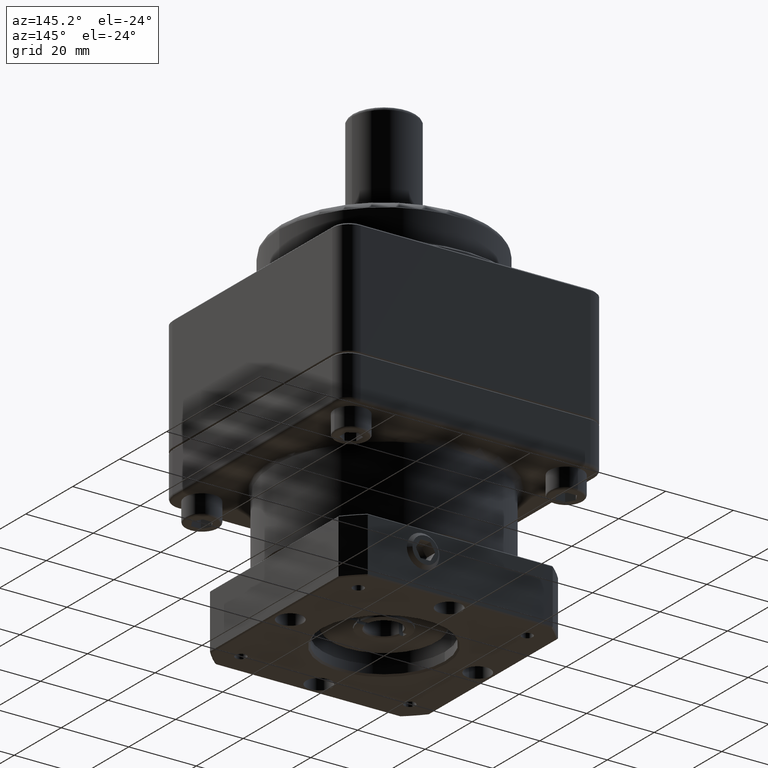
[diagram: clean part render]
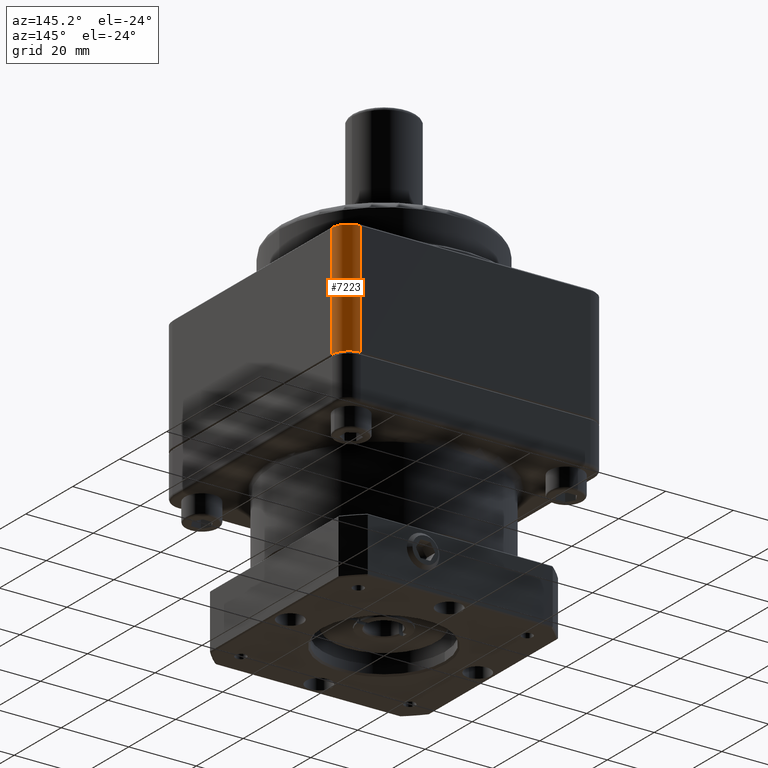
[diagram: same view with one face highlighted and labeled with its STEP entity id]
A machine part, auxiliary view. The second image highlights one B-rep face of the part: STEP entity #7223.
In plain terms, the highlighted cylindrical surface (edge-blend (fillet) strip) has radius 5 mm, axis along (0, 0, 1).
Its self-contained STEP definition (entity closure, byte-faithful):
#6722=CARTESIAN_POINT('',(34.0,39.0,34.0));
#6723=VERTEX_POINT('',#6722);
#6744=CARTESIAN_POINT('',(39.0,34.0,34.0));
#6745=VERTEX_POINT('',#6744);
#6752=CARTESIAN_POINT('',(34.0,34.0,34.0));
#6753=DIRECTION('',(0.0,0.0,1.0));
#6754=DIRECTION('',(1.0,0.0,0.0));
#6755=AXIS2_PLACEMENT_3D('',#6752,#6753,#6754);
#6756=CIRCLE('',#6755,5.0);
#6757=EDGE_CURVE('',#6745,#6723,#6756,.T.);
#6991=CARTESIAN_POINT('',(34.0,39.0,0.3));
#6992=VERTEX_POINT('',#6991);
#6993=CARTESIAN_POINT('',(34.0,39.0,0.3));
#6994=DIRECTION('',(0.0,0.0,1.0));
#6995=VECTOR('',#6994,33.700000000000003);
#6996=LINE('',#6993,#6995);
#6997=EDGE_CURVE('',#6992,#6723,#6996,.T.);
#7136=CARTESIAN_POINT('',(39.0,34.0,0.3));
#7137=VERTEX_POINT('',#7136);
#7161=CARTESIAN_POINT('',(34.0,34.0,0.3));
#7162=DIRECTION('',(0.0,0.0,-1.0));
#7163=DIRECTION('',(1.0,0.0,0.0));
#7164=AXIS2_PLACEMENT_3D('',#7161,#7162,#7163);
#7165=CIRCLE('',#7164,5.0);
#7166=EDGE_CURVE('',#6992,#7137,#7165,.T.);
#7203=CARTESIAN_POINT('',(39.0,34.0,0.3));
#7204=DIRECTION('',(0.0,0.0,1.0));
#7205=VECTOR('',#7204,33.700000000000003);
#7206=LINE('',#7203,#7205);
#7207=EDGE_CURVE('',#7137,#6745,#7206,.T.);
#7212=CARTESIAN_POINT('',(34.0,34.0,0.0));
#7213=DIRECTION('',(0.0,0.0,1.0));
#7214=DIRECTION('',(1.0,0.0,0.0));
#7215=AXIS2_PLACEMENT_3D('',#7212,#7213,#7214);
#7216=CYLINDRICAL_SURFACE('',#7215,5.0);
#7217=ORIENTED_EDGE('',*,*,#6757,.F.);
#7218=ORIENTED_EDGE('',*,*,#7207,.F.);
#7219=ORIENTED_EDGE('',*,*,#7166,.F.);
#7220=ORIENTED_EDGE('',*,*,#6997,.T.);
#7221=EDGE_LOOP('',(#7217,#7218,#7219,#7220));
#7222=FACE_OUTER_BOUND('',#7221,.T.);
#7223=ADVANCED_FACE('',(#7222),#7216,.T.);